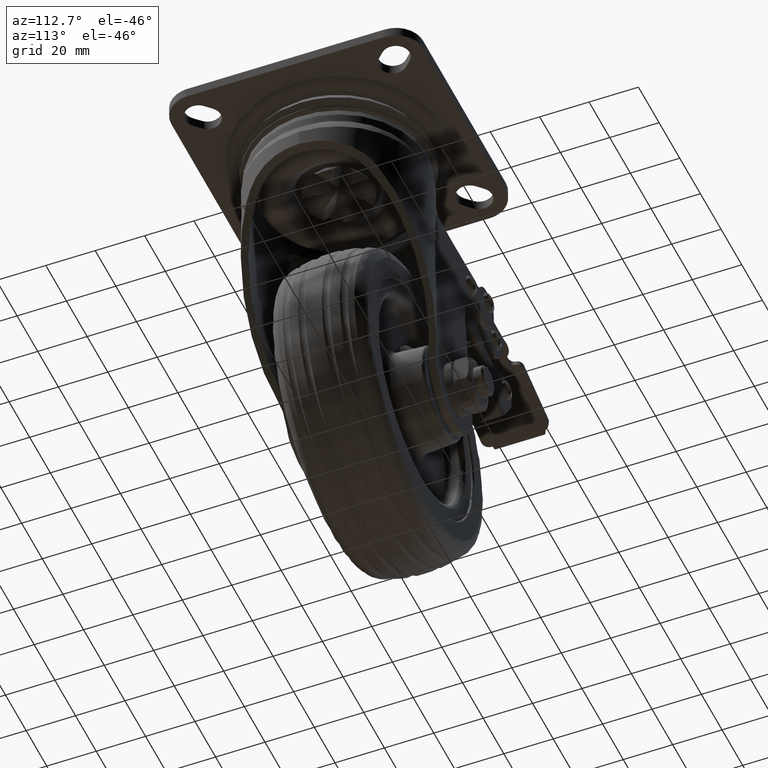
[diagram: clean part render]
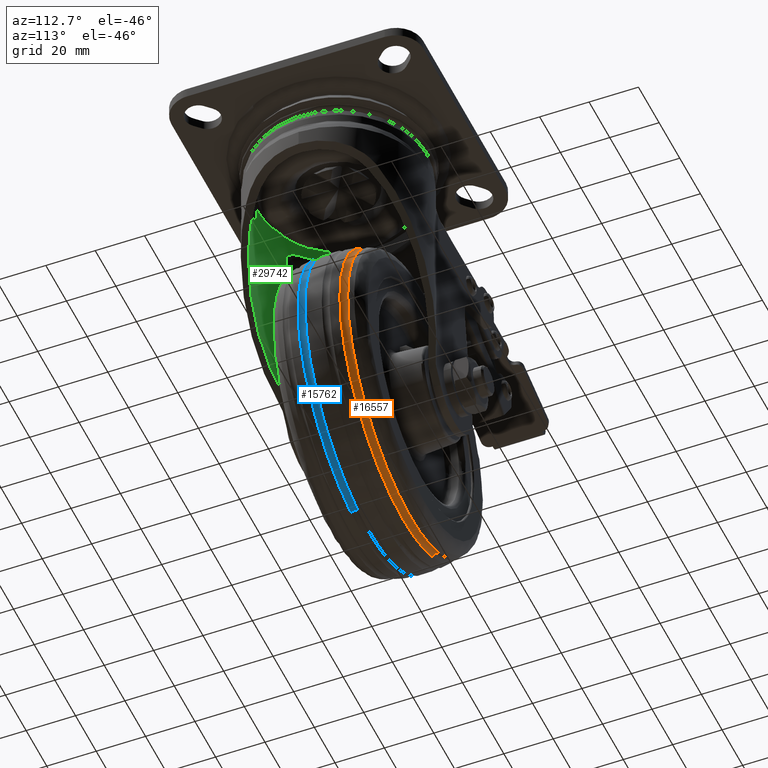
[diagram: same view with three faces highlighted in distinct colors, each labeled with its STEP entity id]
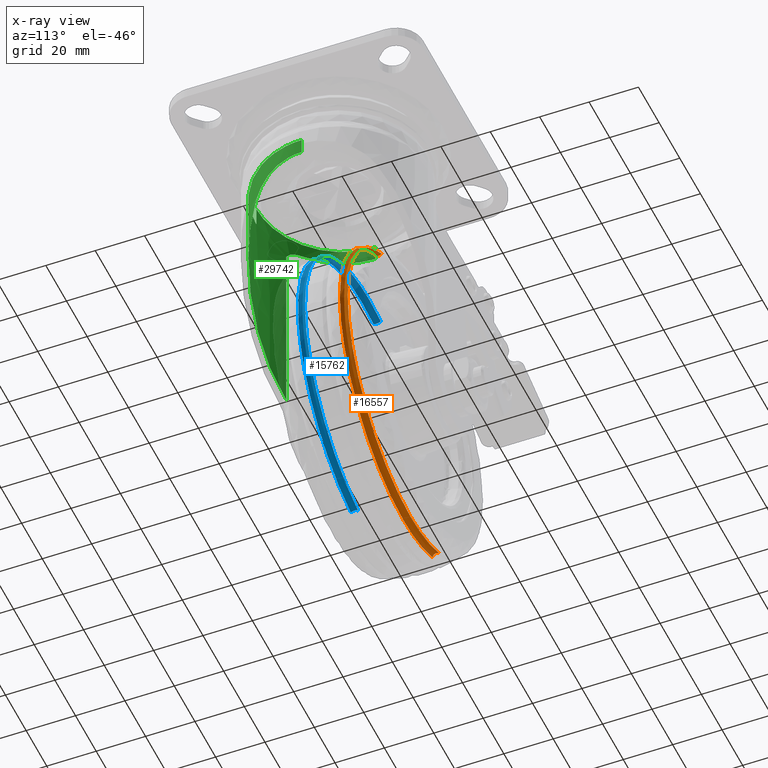
[diagram: x-ray of the same camera — body ghosted, the three highlighted faces saturated]
A machine part, auxiliary view with three faces highlighted in distinct colors.
The next image is the same camera in x-ray (body ghosted, the three faces saturated) — at least one of them is partly hidden behind the body in this view.
Their STEP definitions:

[orange] entity #16557 — the highlighted face is a freeform B-spline surface patch.
#16207=CARTESIAN_POINT('',(-66.229062345507842,10.319396412320030,-160.052411593649110));
#16208=VERTEX_POINT('',#16207);
#16235=CARTESIAN_POINT('',(-38.000026702880859,10.319405059351331,-166.923472942941800));
#16236=VERTEX_POINT('',#16235);
#16237=CARTESIAN_POINT('',(-66.229062345507842,10.319396412320026,-160.052411593649080));
#16238=CARTESIAN_POINT('',(-52.950765855068440,10.319400735838927,-166.923471316384820));
#16239=CARTESIAN_POINT('',(-38.000026702880859,10.319405059351331,-166.923472942941800));
#16247=(BOUNDED_CURVE()B_SPLINE_CURVE(2,(#16237,#16238,#16239),.UNSPECIFIED.,.F.,.U.)B_SPLINE_CURVE_WITH_KNOTS((3,3),(0.921825375654569,1.0),.UNSPECIFIED.)CURVE()GEOMETRIC_REPRESENTATION_ITEM()RATIONAL_B_SPLINE_CURVE((0.874103864218995,0.908412730583737,1.0))REPRESENTATION_ITEM(''));
#16248=EDGE_CURVE('',#16208,#16236,#16247,.T.);
#16301=CARTESIAN_POINT('',(-9.770991060236376,10.319396412257509,-50.947389300848378));
#16302=VERTEX_POINT('',#16301);
#16303=CARTESIAN_POINT('',(-38.000026702880859,10.319405059351331,-166.923472942941800));
#16304=CARTESIAN_POINT('',(-35.230134175752880,10.319405011904029,-166.923595113737090));
#16305=CARTESIAN_POINT('',(-30.116525492604818,10.319404899894430,-166.576958346746810));
#16306=CARTESIAN_POINT('',(-22.470657650089191,10.319404663995460,-165.086611877636300));
#16307=CARTESIAN_POINT('',(-15.872305840215031,10.319404399703959,-162.937932803981910));
#16308=CARTESIAN_POINT('',(-9.173076871348695,10.319404070566300,-159.892554954199510));
#16309=CARTESIAN_POINT('',(-2.217305575817861,10.319403657161191,-155.712453854312290));
#16310=CARTESIAN_POINT('',(5.355456995780735,10.319403085677870,-149.436750448974210));
#16311=CARTESIAN_POINT('',(11.191352498547490,10.319402504907631,-142.606358660684800));
#16312=CARTESIAN_POINT('',(15.115384223598801,10.319402008374920,-136.507356923572390));
#16313=CARTESIAN_POINT('',(18.386053018698782,10.319401513730730,-130.276155463411100));
#16314=CARTESIAN_POINT('',(21.011213171668150,10.319400975488101,-123.268448787737200));
#16315=CARTESIAN_POINT('',(23.041689481357739,10.319400295351681,-114.100141240293500));
#16316=CARTESIAN_POINT('',(23.651689097656352,10.319399691732229,-105.673147479018890));
#16317=CARTESIAN_POINT('',(22.978549460782130,10.319399081547930,-96.840578680787374));
#16318=CARTESIAN_POINT('',(21.230693850553930,10.319398515255219,-88.369967143670351));
#16319=CARTESIAN_POINT('',(18.114275346492530,10.319397975842760,-79.948134405594345));
#16320=CARTESIAN_POINT('',(14.185758700070860,10.319397543322969,-72.847238859730396));
#16321=CARTESIAN_POINT('',(10.097083900023220,10.319397210060909,-67.117478870026787));
#16322=CARTESIAN_POINT('',(5.150317566958044,10.319396900853331,-61.520602363956300));
#16323=CARTESIAN_POINT('',(-1.485252376791422,10.319396611721290,-55.797872487656882));
#16324=CARTESIAN_POINT('',(-6.932402543154620,10.319396467004070,-52.416076676492843));
#16325=CARTESIAN_POINT('',(-9.770991060236376,10.319396412257509,-50.947389300848378));
#16326=B_SPLINE_CURVE_WITH_KNOTS('',3,(#16303,#16304,#16305,#16306,#16307,#16308,#16309,#16310,#16311,#16312,#16313,#16314,#16315,#16316,#16317,#16318,#16319,#16320,#16321,#16322,#16323,#16324,#16325),.UNSPECIFIED.,.F.,.U.,(4,1,1,1,1,1,1,1,1,1,1,1,1,1,1,1,1,1,1,1,4),(0.000000010280189,8.309664418567081,15.340960222253470,23.331032574775261,29.083906240755852,37.393573825419907,47.620928486874867,58.487473980401433,64.240316624039195,69.353973929424811,79.581387522743796,86.612680220219687,97.479004289840830,104.829881301838200,113.139571026397700,123.366886355971200,131.676596791578190,137.429452753070110,144.460730991710110,154.048829012204490,163.636920496424490),.UNSPECIFIED.);
#16327=EDGE_CURVE('',#16236,#16302,#16326,.T.);
#16388=CARTESIAN_POINT('',(-10.091450953206961,13.199706283594841,-51.566676906595163));
#16389=VERTEX_POINT('',#16388);
#16405=CARTESIAN_POINT('',(-65.908602417812745,13.199702148256550,-159.433123920797900));
#16406=VERTEX_POINT('',#16405);
#16435=CARTESIAN_POINT('',(-66.229062345507842,10.319396412320030,-160.052411593649110));
#16436=CARTESIAN_POINT('',(-66.143455183676792,10.390711486503930,-159.886976057360410));
#16437=CARTESIAN_POINT('',(-65.997918780352961,10.577542873255480,-159.605727474657300));
#16438=CARTESIAN_POINT('',(-65.851096961308684,10.930161642578479,-159.321994830614390));
#16439=CARTESIAN_POINT('',(-65.753165191699324,11.311654662174121,-159.132742033509290));
#16440=CARTESIAN_POINT('',(-65.701528102262159,11.698203832180271,-159.032953541460500));
#16441=CARTESIAN_POINT('',(-65.692922614072714,12.153642032127779,-159.016323466023290));
#16442=CARTESIAN_POINT('',(-65.741513714361275,12.673712024112310,-159.110225594725990));
#16443=CARTESIAN_POINT('',(-65.836299806807688,13.024122759924520,-159.293399381776600));
#16444=CARTESIAN_POINT('',(-65.908602417812745,13.199702148256550,-159.433123920797900));
#16445=B_SPLINE_CURVE_WITH_KNOTS('',3,(#16435,#16436,#16437,#16438,#16439,#16440,#16441,#16442,#16443,#16444),.UNSPECIFIED.,.F.,.U.,(4,1,1,1,1,1,1,4),(0.000000659704927,0.598358886815011,1.087993877044493,1.414407411617876,1.903866145151539,2.284668345177217,2.774239790144032,3.481402093347331),.UNSPECIFIED.);
#16446=EDGE_CURVE('',#16208,#16406,#16445,.T.);
#16450=CARTESIAN_POINT('',(-9.770991060236376,10.319396412257509,-50.947389300848378));
#16451=CARTESIAN_POINT('',(-9.903448905021246,10.429155047218289,-51.203363615601063));
#16452=CARTESIAN_POINT('',(-10.098828692112001,10.736232475375850,-51.580934360475453));
#16453=CARTESIAN_POINT('',(-10.255333604528040,11.325064366479740,-51.883379548112551));
#16454=CARTESIAN_POINT('',(-10.305389462249410,11.806968418589539,-51.980112315498822));
#16455=CARTESIAN_POINT('',(-10.301055929917780,12.299214558932700,-51.971737779726318));
#16456=CARTESIAN_POINT('',(-10.235544477715241,12.774647874624140,-51.845137131021531));
#16457=CARTESIAN_POINT('',(-10.141442839762281,13.078076985320390,-51.663286049842483));
#16458=CARTESIAN_POINT('',(-10.091450953206961,13.199706283594841,-51.566676906595163));
#16459=B_SPLINE_CURVE_WITH_KNOTS('',3,(#16450,#16451,#16452,#16453,#16454,#16455,#16456,#16457,#16458),.UNSPECIFIED.,.F.,.U.,(4,1,1,1,1,1,4),(0.000000658850217,0.924784091917862,1.523121223393835,2.012594657145914,2.393417123237470,2.991844392173514,3.481407163388247),.UNSPECIFIED.);
#16460=EDGE_CURVE('',#16302,#16389,#16459,.T.);
#16465=CARTESIAN_POINT('',(-67.832413510722134,10.266041945998506,-159.404594822694800));
#16466=CARTESIAN_POINT('',(-67.072305796272829,10.266041945998508,-159.797924246265410));
#16467=CARTESIAN_POINT('',(-11.607331502610361,10.266041945998508,-188.499127973810350));
#16468=CARTESIAN_POINT('',(16.695934660526714,10.266041945998506,-133.803166610402710));
#16469=CARTESIAN_POINT('',(44.999200823663820,10.266041945998508,-79.107205246995150));
#16470=CARTESIAN_POINT('',(-10.465773470026173,10.266041945998508,-50.406001519436025));
#16471=CARTESIAN_POINT('',(-11.225881184502370,10.266041945998508,-50.012672095851450));
#16472=CARTESIAN_POINT('',(-67.336546905845154,10.551245192307114,-158.508604235047610));
#16473=CARTESIAN_POINT('',(-66.589073515096885,10.551245192307116,-158.895395833565200));
#16474=CARTESIAN_POINT('',(-12.046024398583111,10.551245192307116,-187.119535203506640));
#16475=CARTESIAN_POINT('',(15.786791827388519,10.551245192307116,-133.332716673237230));
#16476=CARTESIAN_POINT('',(43.619608053360153,10.551245192307116,-79.545898142967914));
#16477=CARTESIAN_POINT('',(-10.923441063180668,10.551245192307114,-51.321758773012448));
#16478=CARTESIAN_POINT('',(-11.670914453955380,10.551245192307114,-50.934967174481137));
#16479=CARTESIAN_POINT('',(-67.217953286711335,11.585299031982135,-158.294315219707870));
#16480=CARTESIAN_POINT('',(-66.473501575903370,11.585299031982139,-158.679543203481870));
#16481=CARTESIAN_POINT('',(-12.150944104225715,11.585299031982139,-186.789585781722760));
#16482=CARTESIAN_POINT('',(15.569357263675260,11.585299031982141,-133.220201815166600));
#16483=CARTESIAN_POINT('',(43.289658631576238,11.585299031982139,-79.650817848610501));
#16484=CARTESIAN_POINT('',(-11.032898840128372,11.585299031982133,-51.540775270355660));
#16485=CARTESIAN_POINT('',(-11.777350550962705,11.585299031982139,-51.155547286568179));
#16486=CARTESIAN_POINT('',(-67.100693491145435,12.607722858239367,-158.082436314971910));
#16487=CARTESIAN_POINT('',(-66.359229475414551,12.607722858239367,-158.466118269992080));
#16488=CARTESIAN_POINT('',(-12.254683776936190,12.607722858239368,-186.463347304239080));
#16489=CARTESIAN_POINT('',(15.354368188578201,12.607722858239368,-133.108952412780070));
#16490=CARTESIAN_POINT('',(42.963420154092610,12.607722858239368,-79.754557521320976));
#16491=CARTESIAN_POINT('',(-11.141125544412619,12.607722858239363,-51.757328487060093));
#16492=CARTESIAN_POINT('',(-11.882589560169716,12.607722858239372,-51.373646532026356));
#16493=CARTESIAN_POINT('',(-67.474289593062593,13.321259894450646,-158.757494057532600));
#16494=CARTESIAN_POINT('',(-66.723306617920770,13.321259894450643,-159.146101744454820));
#16495=CARTESIAN_POINT('',(-11.924163523581308,13.321259894450639,-187.502760880691600));
#16496=CARTESIAN_POINT('',(16.039335103481903,13.321259894450638,-133.463399074328810));
#16497=CARTESIAN_POINT('',(44.002833730545085,13.321259894450639,-79.424037267966085));
#16498=CARTESIAN_POINT('',(-10.796309363821564,13.321259894450639,-51.067378131715230));
#16499=CARTESIAN_POINT('',(-11.547292338989948,13.321259894450638,-50.678770444779211));
#16507=(BOUNDED_SURFACE()B_SPLINE_SURFACE(2,2,((#16465,#16472,#16479,#16486,#16493),(#16466,#16473,#16480,#16487,#16494),(#16467,#16474,#16481,#16488,#16495),(#16468,#16475,#16482,#16489,#16496),(#16469,#16476,#16483,#16490,#16497),(#16470,#16477,#16484,#16491,#16498),(#16471,#16478,#16485,#16492,#16499)),.UNSPECIFIED.,.F.,.F.,.U.)B_SPLINE_SURFACE_WITH_KNOTS((3,1,2,1,3),(3,2,3),(0.0,2.040750295518150,104.078265067145690,206.115779838773190,208.156530134364800),(0.0,1.966906784546584,3.915065884135067),.UNSPECIFIED.)GEOMETRIC_REPRESENTATION_ITEM()RATIONAL_B_SPLINE_SURFACE(((0.976481071352667,0.855918617845956,1.011715728753030,0.857403606954548,0.974207882884516),(0.970827216697992,0.850962823408663,1.005857864376515,0.852439214385833,0.968567190059168),(0.682480629321449,0.598217307117140,0.707106781186548,0.599255193391744,0.680891855978244),(0.965173362043318,0.846007028971371,1.0,0.847474821817117,0.962926497233820),(0.682480629321449,0.598217307117140,0.707106781186548,0.599255193391744,0.680891855978244),(0.970827216698196,0.850962823408842,1.005857864376726,0.852439214386011,0.968567190059371),(0.976481071353074,0.855918617846313,1.011715728753451,0.857403606954906,0.974207882884922)))REPRESENTATION_ITEM('')SURFACE());
#16508=CARTESIAN_POINT('',(-38.000026702880859,13.199703744225380,-166.226178585033300));
#16509=VERTEX_POINT('',#16508);
#16510=CARTESIAN_POINT('',(-38.000026702880859,13.199703744225380,-166.226178585033300));
#16511=CARTESIAN_POINT('',(-33.997622610262312,13.199703713977790,-166.226766466874810));
#16512=CARTESIAN_POINT('',(-28.520988371595902,13.199703685657679,-165.682711039748510));
#16513=CARTESIAN_POINT('',(-21.139639697045510,13.199703672133410,-163.921941811621710));
#16514=CARTESIAN_POINT('',(-15.338043511751231,13.199703674823059,-161.982701950903500));
#16515=CARTESIAN_POINT('',(-9.123369059252134,13.199703697522750,-159.079120170320410));
#16516=CARTESIAN_POINT('',(-3.472514012202467,13.199703738714870,-155.582134093874710));
#16517=CARTESIAN_POINT('',(2.294665931494592,13.199703801533220,-151.146868380440110));
#16518=CARTESIAN_POINT('',(7.549442116570084,13.199703886649321,-145.943358042423710));
#16519=CARTESIAN_POINT('',(12.497922853152151,13.199704003789011,-139.501189653669800));
#16520=CARTESIAN_POINT('',(15.928837311748740,13.199704117443680,-133.682254851653600));
#16521=CARTESIAN_POINT('',(18.614856732423242,13.199704240089210,-127.723052200579000));
#16522=CARTESIAN_POINT('',(20.445347493278849,13.199704355618501,-122.329986044610910));
#16523=CARTESIAN_POINT('',(21.941663513146811,13.199704496936651,-115.966996548598600));
#16524=CARTESIAN_POINT('',(22.761633575346199,13.199704651567350,-109.261938326591900));
#16525=CARTESIAN_POINT('',(22.757070473811488,13.199704838854220,-101.455124071693110));
#16526=CARTESIAN_POINT('',(21.826571618195569,13.199705019193740,-94.229503040700948));
#16527=CARTESIAN_POINT('',(20.023617666554589,13.199705201923059,-87.179111561065056));
#16528=CARTESIAN_POINT('',(17.313628420588930,13.199705395299709,-79.970316718948567));
#16529=CARTESIAN_POINT('',(13.682782835386380,13.199705583090349,-73.284553803854564));
#16530=CARTESIAN_POINT('',(8.852840224047071,13.199705779272110,-66.626516673704614));
#16531=CARTESIAN_POINT('',(4.318554826972317,13.199705930300890,-61.757884774131142));
#16532=CARTESIAN_POINT('',(-2.096389878329667,13.199706110066980,-56.283425503904397));
#16533=CARTESIAN_POINT('',(-6.723654864734925,13.199706216367350,-53.308870413721067));
#16534=CARTESIAN_POINT('',(-10.091450953206961,13.199706283594841,-51.566676906595163));
#16535=B_SPLINE_CURVE_WITH_KNOTS('',3,(#16510,#16511,#16512,#16513,#16514,#16515,#16516,#16517,#16518,#16519,#16520,#16521,#16522,#16523,#16524,#16525,#16526,#16527,#16528,#16529,#16530,#16531,#16532,#16533,#16534),.UNSPECIFIED.,.F.,.U.,(4,1,1,1,1,1,1,1,1,1,1,1,1,1,1,1,1,1,1,1,1,1,4),(0.000000011087280,12.007049606461980,16.430598285471770,22.750219948311269,30.333615748732878,36.969101349803708,42.656667181370807,52.135937677313812,59.087411920567021,66.986815813661153,72.358439960222853,78.677957385104733,84.049481165100900,91.948948385413246,98.900221062579945,107.431567419763000,113.751043356963610,120.702508141534690,130.497738627010990,136.501270661268710,145.348583621094600,150.404193522153610,161.779278836179000),.UNSPECIFIED.);
#16536=EDGE_CURVE('',#16509,#16389,#16535,.T.);
#16537=ORIENTED_EDGE('',*,*,#16536,.T.);
#16538=ORIENTED_EDGE('',*,*,#16460,.F.);
#16539=ORIENTED_EDGE('',*,*,#16327,.F.);
#16540=ORIENTED_EDGE('',*,*,#16248,.F.);
#16541=ORIENTED_EDGE('',*,*,#16446,.T.);
#16542=CARTESIAN_POINT('',(-65.908602417812730,13.199702148256550,-159.433123920797950));
#16543=CARTESIAN_POINT('',(-52.781042970336586,13.199702759364468,-166.226179561653000));
#16544=CARTESIAN_POINT('',(-38.000026702880859,13.199703744225380,-166.226178585033300));
#16552=(BOUNDED_CURVE()B_SPLINE_CURVE(2,(#16542,#16543,#16544),.UNSPECIFIED.,.F.,.U.)B_SPLINE_CURVE_WITH_KNOTS((3,3),(0.921825373125718,1.0),.UNSPECIFIED.)CURVE()GEOMETRIC_REPRESENTATION_ITEM()RATIONAL_B_SPLINE_CURVE((0.874103861999298,0.908412727621004,1.0))REPRESENTATION_ITEM(''));
#16553=EDGE_CURVE('',#16406,#16509,#16552,.T.);
#16554=ORIENTED_EDGE('',*,*,#16553,.T.);
#16555=EDGE_LOOP('',(#16537,#16538,#16539,#16540,#16541,#16554));
#16556=FACE_OUTER_BOUND('',#16555,.T.);
#16557=ADVANCED_FACE('',(#16556),#16507,.F.);

[blue] entity #15762 — the highlighted face is a freeform B-spline surface patch.
#15391=CARTESIAN_POINT('',(-38.000026702880859,-6.374438212833455,-43.407837706515437));
#15392=VERTEX_POINT('',#15391);
#15406=CARTESIAN_POINT('',(-48.867570147127523,-6.374433639581213,-44.366266160752218));
#15407=VERTEX_POINT('',#15406);
#15408=CARTESIAN_POINT('',(-38.000026702880859,-6.374438212833455,-43.407837706515437));
#15409=CARTESIAN_POINT('',(-43.476061541019433,-6.374435927984968,-43.407835804550913));
#15410=CARTESIAN_POINT('',(-48.867570147127530,-6.374433639581213,-44.366266160752218));
#15418=(BOUNDED_CURVE()B_SPLINE_CURVE(2,(#15408,#15409,#15410),.UNSPECIFIED.,.F.,.U.)B_SPLINE_CURVE_WITH_KNOTS((3,3),(0.500000000000000,0.530081745990662),.UNSPECIFIED.)CURVE()GEOMETRIC_REPRESENTATION_ITEM()RATIONAL_B_SPLINE_CURVE((1.0,0.964757042357065,0.937995442312326))REPRESENTATION_ITEM(''));
#15419=EDGE_CURVE('',#15392,#15407,#15418,.T.);
#15503=CARTESIAN_POINT('',(-27.132483248563730,-6.374433370999287,-166.633534790428800));
#15504=VERTEX_POINT('',#15503);
#15518=CARTESIAN_POINT('',(-27.132483248563730,-6.374433370999287,-166.633534790428800));
#15519=CARTESIAN_POINT('',(-24.417720769879839,-6.374433381374597,-166.150963678353210));
#15520=CARTESIAN_POINT('',(-18.119325422119431,-6.374433422554100,-164.592899698546010));
#15521=CARTESIAN_POINT('',(-10.355124537810781,-6.374433526075030,-161.320084414505400));
#15522=CARTESIAN_POINT('',(-3.851076181880046,-6.374433656259266,-157.464475620997290));
#15523=CARTESIAN_POINT('',(1.977243881500627,-6.374433803112057,-153.235591374256100));
#15524=CARTESIAN_POINT('',(7.407369218649386,-6.374433985636255,-148.124250228534890));
#15525=CARTESIAN_POINT('',(12.025556613359701,-6.374434193000729,-142.441073034471490));
#15526=CARTESIAN_POINT('',(15.813170763082899,-6.374434403433246,-136.745539639413210));
#15527=CARTESIAN_POINT('',(18.664934201168862,-6.374434611510605,-131.185067997589900));
#15528=CARTESIAN_POINT('',(21.202942216629602,-6.374434861423167,-124.577416143338790));
#15529=CARTESIAN_POINT('',(22.904247559488589,-6.374435100372837,-118.317520409194000));
#15530=CARTESIAN_POINT('',(24.079585328134630,-6.374435407222512,-110.359363608954300));
#15531=CARTESIAN_POINT('',(24.197127198533721,-6.374435688270571,-103.146907450073100));
#15532=CARTESIAN_POINT('',(23.387205463061179,-6.374435998188844,-95.268544940719210));
#15533=CARTESIAN_POINT('',(21.903446751927650,-6.374436263790094,-88.579774744207441));
#15534=CARTESIAN_POINT('',(19.342067347230511,-6.374436554350766,-81.337316455164768));
#15535=CARTESIAN_POINT('',(16.030605250062511,-6.374436830187896,-74.532073257219110));
#15536=CARTESIAN_POINT('',(11.111820654587831,-6.374437134581906,-67.123198586964733));
#15537=CARTESIAN_POINT('',(4.485489732167288,-6.374437440262794,-59.817655178166547));
#15538=CARTESIAN_POINT('',(-2.894469615037259,-6.374437689549761,-54.017556151587819));
#15539=CARTESIAN_POINT('',(-10.184118771606011,-6.374437875584853,-49.831375101192492));
#15540=CARTESIAN_POINT('',(-16.253393494105730,-6.374437996132813,-47.226184168955328));
#15541=CARTESIAN_POINT('',(-22.550540381741492,-6.374438092849252,-45.249966410840102));
#15542=CARTESIAN_POINT('',(-29.608140325695320,-6.374438171431518,-43.799205169784237));
#15543=CARTESIAN_POINT('',(-35.002922546286442,-6.374438203506523,-43.407688843635157));
#15544=CARTESIAN_POINT('',(-38.000026702880859,-6.374438212833455,-43.407837706515437));
#15545=B_SPLINE_CURVE_WITH_KNOTS('',3,(#15518,#15519,#15520,#15521,#15522,#15523,#15524,#15525,#15526,#15527,#15528,#15529,#15530,#15531,#15532,#15533,#15534,#15535,#15536,#15537,#15538,#15539,#15540,#15541,#15542,#15543,#15544),.UNSPECIFIED.,.F.,.U.,(4,1,1,1,1,1,1,1,1,1,1,1,1,1,1,1,1,1,1,1,1,1,1,1,4),(0.000000177685649,8.272004178763439,19.421472825188228,25.175993736130781,30.930510894623009,41.000913436736397,47.474775218982607,52.869605124445400,61.501449401319860,66.176988897255626,74.089477643012245,80.922956186161954,90.273867168453904,95.668638542160011,104.660097637995090,110.774292200761390,118.686834370172090,127.318607125609700,137.389009915364990,148.178768020393110,155.371900698357310,162.565096377065490,167.959955983415910,175.153114431641910,184.144425123350600),.UNSPECIFIED.);
#15546=EDGE_CURVE('',#15504,#15392,#15545,.T.);
#15594=CARTESIAN_POINT('',(-48.918420716604587,-3.425195282217547,-44.080214383769729));
#15595=VERTEX_POINT('',#15594);
#15626=CARTESIAN_POINT('',(-27.081632549147201,-3.425193427250361,-166.919587298365200));
#15627=VERTEX_POINT('',#15626);
#15641=CARTESIAN_POINT('',(-27.132483248563730,-6.374433370999287,-166.633534790428800));
#15642=CARTESIAN_POINT('',(-27.173761659289521,-6.175852921627000,-166.401329667124290));
#15643=CARTESIAN_POINT('',(-27.232024249120769,-5.699761421656819,-166.073582750057200));
#15644=CARTESIAN_POINT('',(-27.251007975617849,-4.947470262560027,-165.966792820941290));
#15645=CARTESIAN_POINT('',(-27.227259965605629,-4.338806643107456,-166.100383467782000));
#15646=CARTESIAN_POINT('',(-27.174515647740449,-3.813982151511712,-166.397088224921590));
#15647=CARTESIAN_POINT('',(-27.117751353392539,-3.539170792969351,-166.716406719354210));
#15648=CARTESIAN_POINT('',(-27.081632549147201,-3.425193427250361,-166.919587298365200));
#15649=B_SPLINE_CURVE_WITH_KNOTS('',3,(#15641,#15642,#15643,#15644,#15645,#15646,#15647,#15648),.UNSPECIFIED.,.F.,.U.,(4,1,1,1,1,4),(0.000000691923259,0.924783980439441,1.686412286160685,2.230205543401768,2.774245635520661,3.481410491852085),.UNSPECIFIED.);
#15650=EDGE_CURVE('',#15504,#15627,#15649,.T.);
#15654=CARTESIAN_POINT('',(-48.867570147127523,-6.374433639581213,-44.366266160752218));
#15655=CARTESIAN_POINT('',(-48.836031296389237,-6.222406138482135,-44.543682940996348));
#15656=CARTESIAN_POINT('',(-48.797816056085352,-5.947430393428119,-44.758656687110133));
#15657=CARTESIAN_POINT('',(-48.760668149404708,-5.424359941825179,-44.967626317998899));
#15658=CARTESIAN_POINT('',(-48.751555556203222,-4.966647357113128,-45.018887759340672));
#15659=CARTESIAN_POINT('',(-48.769197527696022,-4.391822330050552,-44.919645659405070));
#15660=CARTESIAN_POINT('',(-48.818114481676353,-3.849810298051311,-44.644471128046732));
#15661=CARTESIAN_POINT('',(-48.882301888194192,-3.539155461745883,-44.283395098717428));
#15662=CARTESIAN_POINT('',(-48.918420716604587,-3.425195282217547,-44.080214383769729));
#15663=B_SPLINE_CURVE_WITH_KNOTS('',3,(#15654,#15655,#15656,#15657,#15658,#15659,#15660,#15661,#15662),.UNSPECIFIED.,.F.,.U.,(4,1,1,1,1,1,4),(0.000000692301464,0.707164400526173,1.033557493683062,1.686411228709342,2.067001008403227,2.774243897279070,3.481408310579208),.UNSPECIFIED.);
#15664=EDGE_CURVE('',#15407,#15595,#15663,.T.);
#15669=CARTESIAN_POINT('',(-28.821638908060727,-6.478191227089352,-167.071127880040680));
#15670=CARTESIAN_POINT('',(-27.970217263238034,-6.478191227089353,-166.919773199063090));
#15671=CARTESIAN_POINT('',(34.157924247061224,-6.478191227089352,-155.875439178187660));
#15672=CARTESIAN_POINT('',(23.266718137551205,-6.478191227089352,-94.608694337755637));
#15673=CARTESIAN_POINT('',(12.375512028041200,-6.478191227089352,-33.341949497323597));
#15674=CARTESIAN_POINT('',(-49.752629482338691,-6.478191227089352,-44.386283518213268));
#15675=CARTESIAN_POINT('',(-50.604051127240155,-6.478191227089353,-44.537638199204906));
#15676=CARTESIAN_POINT('',(-28.949062833476180,-5.877915552168859,-166.216332063224260));
#15677=CARTESIAN_POINT('',(-28.109461509454086,-5.877915552168860,-166.067078645345420));
#15678=CARTESIAN_POINT('',(33.156152523582030,-5.877915552168860,-155.176073556086290));
#15679=CARTESIAN_POINT('',(22.416149464760913,-5.877915552168860,-94.759897388444543));
#15680=CARTESIAN_POINT('',(11.676146405939804,-5.877915552168860,-34.343721220802777));
#15681=CARTESIAN_POINT('',(-49.589467627175821,-5.877915552168860,-45.234726310075999));
#15682=CARTESIAN_POINT('',(-50.429068951275610,-5.877915552168860,-45.383979727968587));
#15683=CARTESIAN_POINT('',(-28.934460547344656,-4.830605036026676,-166.314288338393960));
#15684=CARTESIAN_POINT('',(-28.093504660543729,-4.830605036026672,-166.164794123938520));
#15685=CARTESIAN_POINT('',(33.270951665870527,-4.830605036026674,-155.256218135616250));
#15686=CARTESIAN_POINT('',(22.513621325670179,-4.830605036026674,-94.742570107065291));
#15687=CARTESIAN_POINT('',(11.756290985469832,-4.830605036026674,-34.228922078514273));
#15688=CARTESIAN_POINT('',(-49.608165341024105,-4.830605036026674,-45.137498066850675));
#15689=CARTESIAN_POINT('',(-50.449121227902779,-4.830605036026671,-45.286992281319783));
#15690=CARTESIAN_POINT('',(-28.919728299006412,-3.773973322878276,-166.413116436890870));
#15691=CARTESIAN_POINT('',(-28.077405793645411,-3.773973322878276,-166.263379282738750));
#15692=CARTESIAN_POINT('',(33.386772535149213,-3.773973322878277,-155.337076012113440));
#15693=CARTESIAN_POINT('',(22.611960698558075,-3.773973322878277,-94.725088610674533));
#15694=CARTESIAN_POINT('',(11.837148861966959,-3.773973322878277,-34.113101209235623));
#15695=CARTESIAN_POINT('',(-49.627029466907430,-3.773973322878276,-45.039404479875103));
#15696=CARTESIAN_POINT('',(-50.469351972346360,-3.773973322878276,-45.189141634041000));
#15697=CARTESIAN_POINT('',(-28.776220906763609,-3.349917203351470,-167.375804708904470));
#15698=CARTESIAN_POINT('',(-27.920586117951636,-3.349917203351471,-167.223701069912490));
#15699=CARTESIAN_POINT('',(34.514988034635309,-3.349917203351470,-156.124715667106130));
#15700=CARTESIAN_POINT('',(23.569888275797464,-3.349917203351471,-94.554800688427804));
#15701=CARTESIAN_POINT('',(12.624788516959619,-3.349917203351470,-32.984885709749491));
#15702=CARTESIAN_POINT('',(-49.810785635708370,-3.349917203351470,-44.083871112570293));
#15703=CARTESIAN_POINT('',(-50.666420424599508,-3.349917203351470,-44.235974751576265));
#15711=(BOUNDED_SURFACE()B_SPLINE_SURFACE(2,2,((#15669,#15676,#15683,#15690,#15697),(#15670,#15677,#15684,#15691,#15698),(#15671,#15678,#15685,#15692,#15699),(#15672,#15679,#15686,#15693,#15700),(#15673,#15680,#15687,#15694,#15701),(#15674,#15681,#15688,#15695,#15702),(#15675,#15682,#15689,#15696,#15703)),.UNSPECIFIED.,.F.,.F.,.U.)B_SPLINE_SURFACE_WITH_KNOTS((3,1,2,1,3),(3,2,3),(0.0,2.072233813328015,105.683924482671200,209.295615152014310,211.367848965537410),(0.0,1.950044168597617,3.914774095284426),.UNSPECIFIED.)GEOMETRIC_REPRESENTATION_ITEM()RATIONAL_B_SPLINE_SURFACE(((0.974451260011927,0.857243036025896,1.011715728752205,0.856079704121268,0.976232055923859),(0.968809158026113,0.852279573168013,1.005857864376103,0.851122976989960,0.970579643076370),(0.681061956741579,0.599142967408901,0.707106781186548,0.598329893286244,0.682306587846394),(0.963167056040299,0.847316110310129,1.0,0.846166249858653,0.964927230228880),(0.681061956741579,0.599142967408901,0.707106781186548,0.598329893286244,0.682306587846394),(0.968809158026644,0.852279573168480,1.005857864376654,0.851122976990427,0.970579643076902),(0.974451260012989,0.857243036026831,1.011715728753309,0.856079704122201,0.976232055924923)))REPRESENTATION_ITEM('')SURFACE());
#15712=CARTESIAN_POINT('',(-38.000026702880859,-3.425197493517917,-43.117296189173508));
#15713=VERTEX_POINT('',#15712);
#15714=CARTESIAN_POINT('',(-38.000026702880859,-3.425197493517917,-43.117296189173508));
#15715=CARTESIAN_POINT('',(-43.501684585320575,-3.425196399374619,-43.117296786608584));
#15716=CARTESIAN_POINT('',(-48.918420716604587,-3.425195282217548,-44.080214383769729));
#15724=(BOUNDED_CURVE()B_SPLINE_CURVE(2,(#15714,#15715,#15716),.UNSPECIFIED.,.F.,.U.)B_SPLINE_CURVE_WITH_KNOTS((3,3),(0.500000000000000,0.530081746601706),.UNSPECIFIED.)CURVE()GEOMETRIC_REPRESENTATION_ITEM()RATIONAL_B_SPLINE_CURVE((1.0,0.964757041641183,0.937995441225121))REPRESENTATION_ITEM(''));
#15725=EDGE_CURVE('',#15713,#15595,#15724,.T.);
#15726=ORIENTED_EDGE('',*,*,#15725,.T.);
#15727=ORIENTED_EDGE('',*,*,#15664,.F.);
#15728=ORIENTED_EDGE('',*,*,#15419,.F.);
#15729=ORIENTED_EDGE('',*,*,#15546,.F.);
#15730=ORIENTED_EDGE('',*,*,#15650,.T.);
#15731=CARTESIAN_POINT('',(-27.081632549147201,-3.425193427250361,-166.919587298365200));
#15732=CARTESIAN_POINT('',(-24.591293042725141,-3.425193439808628,-166.476954977804210));
#15733=CARTESIAN_POINT('',(-19.664565987291610,-3.425193474914912,-165.288188467575310));
#15734=CARTESIAN_POINT('',(-12.884430927728570,-3.425193552844244,-162.748613729746490));
#15735=CARTESIAN_POINT('',(-6.974195025110880,-3.425193646944857,-159.736423611430500));
#15736=CARTESIAN_POINT('',(-1.593364435963707,-3.425193755727920,-156.288911615968000));
#15737=CARTESIAN_POINT('',(4.358075870063594,-3.425193905969257,-151.562865672016500));
#15738=CARTESIAN_POINT('',(9.622119718970872,-3.425194082112358,-146.062969278099810));
#15739=CARTESIAN_POINT('',(14.922667655462140,-3.425194313216353,-138.885323700886600));
#15740=CARTESIAN_POINT('',(19.001219938054120,-3.425194553071171,-131.469878287914810));
#15741=CARTESIAN_POINT('',(22.158010162661171,-3.425194837208813,-122.725355366690390));
#15742=CARTESIAN_POINT('',(23.997895907818670,-3.425195118226616,-114.107479138975190));
#15743=CARTESIAN_POINT('',(24.617455917572158,-3.425195413967072,-105.069556282438400));
#15744=CARTESIAN_POINT('',(23.933222691929618,-3.425195686745169,-96.763348712435970));
#15745=CARTESIAN_POINT('',(22.200711378650691,-3.425195958889092,-88.501534661836828));
#15746=CARTESIAN_POINT('',(19.783830325372691,-3.425196188968550,-81.539461647276056));
#15747=CARTESIAN_POINT('',(16.024340684404869,-3.425196439636376,-73.981297011364148));
#15748=CARTESIAN_POINT('',(11.882121656866691,-3.425196647367345,-67.742289629324119));
#15749=CARTESIAN_POINT('',(6.020076268465850,-3.425196872605832,-61.010196176286406));
#15750=CARTESIAN_POINT('',(-0.001797814528928,-3.425197048814647,-55.777830187154770));
#15751=CARTESIAN_POINT('',(-6.260092070925143,-3.425197187864129,-51.684853065087452));
#15752=CARTESIAN_POINT('',(-12.237027136854531,-3.425197295446152,-48.545237307609113));
#15753=CARTESIAN_POINT('',(-19.654527760301640,-3.425197396563005,-45.637282619103537));
#15754=CARTESIAN_POINT('',(-28.605239534165889,-3.425197470990878,-43.580228404050487));
#15755=CARTESIAN_POINT('',(-34.988901458490830,-3.425197491164628,-43.117180724885472));
#15756=CARTESIAN_POINT('',(-38.000026702880859,-3.425197493517917,-43.117296189173508));
#15757=B_SPLINE_CURVE_WITH_KNOTS('',3,(#15731,#15732,#15733,#15734,#15735,#15736,#15737,#15738,#15739,#15740,#15741,#15742,#15743,#15744,#15745,#15746,#15747,#15748,#15749,#15750,#15751,#15752,#15753,#15754,#15755,#15756),.UNSPECIFIED.,.F.,.U.,(4,1,1,1,1,1,1,1,1,1,1,1,1,1,1,1,1,1,1,1,1,1,1,4),(0.000000180066650,7.588116720266754,15.176277027644890,21.680341300472492,27.461804002839699,34.327296941984542,44.444826899556922,50.226269179318479,61.066474729106901,69.738633977825344,78.049529286239661,87.444226494381454,96.839090594019410,102.981864608274190,112.737990273370200,118.880793223067600,128.275693387180210,135.141153752690090,145.620023431761810,152.124194825216390,157.544249594696590,165.855058074030610,175.972680413868400,185.006069209746190),.UNSPECIFIED.);
#15758=EDGE_CURVE('',#15627,#15713,#15757,.T.);
#15759=ORIENTED_EDGE('',*,*,#15758,.T.);
#15760=EDGE_LOOP('',(#15726,#15727,#15728,#15729,#15730,#15759));
#15761=FACE_OUTER_BOUND('',#15760,.T.);
#15762=ADVANCED_FACE('',(#15761),#15711,.F.);

[green] entity #29742 — the highlighted face is a freeform B-spline surface patch.
#27816=CARTESIAN_POINT('',(33.117897078574600,-12.342195749429139,-28.749992000000098));
#27817=VERTEX_POINT('',#27816);
#27833=CARTESIAN_POINT('',(35.650001000000131,-8.917644E-012,-28.749991999999921));
#27834=VERTEX_POINT('',#27833);
#27852=CARTESIAN_POINT('',(33.117897078574600,-12.342195749429139,-28.749992000000049));
#27853=CARTESIAN_POINT('',(33.326688459775930,-11.852077951536479,-28.749992000000049));
#27854=CARTESIAN_POINT('',(33.523117233764360,-11.357170076511860,-28.749991999999910));
#27855=CARTESIAN_POINT('',(33.799117528559130,-10.607584806538910,-28.749991999999921));
#27856=CARTESIAN_POINT('',(33.888079584742663,-10.356305056896421,-28.749991999999921));
#27857=CARTESIAN_POINT('',(34.059312827317413,-9.852648331466138,-28.749991999999921));
#27858=CARTESIAN_POINT('',(34.141598501121962,-9.600252792265044,-28.749991999999921));
#27859=CARTESIAN_POINT('',(34.536509704239599,-8.335462638793869,-28.749991999999931));
#27860=CARTESIAN_POINT('',(34.799695643801847,-7.314649707235249,-28.749991999999921));
#27861=CARTESIAN_POINT('',(35.222269859455693,-5.255349715564203,-28.749991999999921));
#27862=CARTESIAN_POINT('',(35.381656866197822,-4.216862439313523,-28.749991999999910));
#27863=CARTESIAN_POINT('',(35.595515751247341,-2.122023482111763,-28.749991999999910));
#27864=CARTESIAN_POINT('',(35.649999386946327,-1.065673803148441,-28.749991999999910));
#27865=CARTESIAN_POINT('',(35.650000999988187,-0.000031471689444,-28.749991999999910));
#27866=CARTESIAN_POINT('',(35.650001000000117,-0.000015735848193,-28.749991999999910));
#27867=CARTESIAN_POINT('',(35.650001000000167,-8.917629E-012,-28.749991999999910));
#27868=B_SPLINE_CURVE_WITH_KNOTS('',3,(#27852,#27853,#27854,#27855,#27856,#27857,#27858,#27859,#27860,#27861,#27862,#27863,#27864,#27865,#27866,#27867),.UNSPECIFIED.,.F.,.U.,(4,2,2,2,2,2,2,4),(0.0,0.062500000000000,0.093750000000000,0.125000000000000,0.250000000000000,0.375000000000000,0.500000000000000,0.500001845843949),.UNSPECIFIED.);
#27869=EDGE_CURVE('',#27817,#27834,#27868,.T.);
#27897=CARTESIAN_POINT('',(1.077311E-014,-33.344049231719353,-26.749992000000049));
#27898=VERTEX_POINT('',#27897);
#28067=CARTESIAN_POINT('',(7.834509E-014,-33.344049231719353,-26.749992000000049));
#28068=CARTESIAN_POINT('',(0.434218145006582,-33.344049231719353,-26.787690371025541));
#28069=CARTESIAN_POINT('',(0.868708813743745,-33.336622669203273,-26.825412621652958));
#28070=CARTESIAN_POINT('',(1.736656016897679,-33.306938749982422,-26.900670795929820));
#28071=CARTESIAN_POINT('',(2.170351853922239,-33.284682264800573,-26.938227625185728));
#28072=CARTESIAN_POINT('',(2.820484193176611,-33.240150935555477,-26.994383141101029));
#28073=CARTESIAN_POINT('',(3.037104663457739,-33.223447784790451,-27.013069774627510));
#28074=CARTESIAN_POINT('',(3.469253401300969,-33.186409040938102,-27.050289141337181));
#28075=CARTESIAN_POINT('',(4.116196615141610,-33.125378479789227,-27.105918377050479));
#28076=CARTESIAN_POINT('',(4.759329940426262,-33.048039951943942,-27.160900261086461));
#28077=CARTESIAN_POINT('',(6.040575535732121,-32.871824557285912,-27.269876436878661));
#28078=CARTESIAN_POINT('',(7.735527163484584,-32.579492027618137,-27.412542309704449));
#28079=CARTESIAN_POINT('',(9.404015249767870,-32.173181742932648,-27.548661285071208));
#28080=CARTESIAN_POINT('',(11.059196298317040,-31.709356135240618,-27.680897718792181));
#28081=CARTESIAN_POINT('',(11.880133906379481,-31.448688260795119,-27.745074800159760));
#28082=CARTESIAN_POINT('',(13.101333238181921,-31.013442164672011,-27.837990103040791));
#28083=CARTESIAN_POINT('',(13.506696669916080,-30.860978410157369,-27.868403661312350));
#28084=CARTESIAN_POINT('',(14.112141225888250,-30.620997394351090,-27.913133355939280));
#28085=CARTESIAN_POINT('',(14.313624588661080,-30.539079595023651,-27.927902236353230));
#28086=CARTESIAN_POINT('',(14.715267506476490,-30.371625979672860,-27.957101868885530));
#28087=CARTESIAN_POINT('',(14.915083870597480,-30.286235472239252,-27.971507792587431));
#28088=CARTESIAN_POINT('',(15.909164700342330,-29.851003745197421,-28.042560428567679));
#28089=CARTESIAN_POINT('',(17.467729510634179,-29.101714171206439,-28.149987696576961));
#28090=CARTESIAN_POINT('',(18.962941384139452,-28.247498125855589,-28.244585243584972));
#28091=CARTESIAN_POINT('',(20.426237128626600,-27.340416785316581,-28.332667808284128));
#28092=CARTESIAN_POINT('',(21.141928311446101,-26.860445692478631,-28.373451350666279));
#28093=CARTESIAN_POINT('',(22.540610836223841,-25.846352248012550,-28.448465817050579));
#28094=CARTESIAN_POINT('',(23.223605299953661,-25.312234960940550,-28.482696309130841));
#28095=CARTESIAN_POINT('',(24.056039937240470,-24.609320889601229,-28.521410925272018));
#28096=CARTESIAN_POINT('',(24.221436811414819,-24.466984284174011,-28.528948898862900));
#28097=CARTESIAN_POINT('',(24.548732237392599,-24.179935019544359,-28.543561445895829));
#28098=CARTESIAN_POINT('',(25.034941762055009,-23.745366601278679,-28.564809434897100));
#28099=CARTESIAN_POINT('',(25.507015345872041,-23.298870208046040,-28.584086458977279));
#28100=CARTESIAN_POINT('',(26.432411254613839,-22.390057593723551,-28.620127481992679));
#28101=CARTESIAN_POINT('',(27.024366623915100,-21.763111580813820,-28.640802112970260));
#28102=CARTESIAN_POINT('',(28.158199845082269,-20.466987570482111,-28.676101600861681));
#28103=CARTESIAN_POINT('',(28.700079238189339,-19.797810852729882,-28.690725851636440));
#28104=CARTESIAN_POINT('',(29.732768991438551,-18.416410729203861,-28.714650910965869));
#28105=CARTESIAN_POINT('',(30.223583653735759,-17.704190922954979,-28.723951111502949));
#28106=CARTESIAN_POINT('',(30.803971298809401,-16.786006082647901,-28.732759539521350));
#28107=CARTESIAN_POINT('',(30.918389761162871,-16.600971488691400,-28.734380629155321));
#28108=CARTESIAN_POINT('',(31.143867553050750,-16.228072948521248,-28.737355408476720));
#28109=CARTESIAN_POINT('',(31.255011578754310,-16.040060231807679,-28.738709994410929));
#28110=CARTESIAN_POINT('',(31.582582805374969,-15.473038828382970,-28.742385855993120));
#28111=CARTESIAN_POINT('',(31.793150177677120,-15.091085772728260,-28.744320164772329));
#28112=CARTESIAN_POINT('',(32.401361957460850,-13.933385709419870,-28.748789835200451));
#28113=CARTESIAN_POINT('',(32.775552752763787,-13.145816311360599,-28.749992000000049));
#28114=CARTESIAN_POINT('',(33.117897078574600,-12.342195749429139,-28.749992000000049));
#28115=B_SPLINE_CURVE_WITH_KNOTS('',3,(#28067,#28068,#28069,#28070,#28071,#28072,#28073,#28074,#28075,#28076,#28077,#28078,#28079,#28080,#28081,#28082,#28083,#28084,#28085,#28086,#28087,#28088,#28089,#28090,#28091,#28092,#28093,#28094,#28095,#28096,#28097,#28098,#28099,#28100,#28101,#28102,#28103,#28104,#28105,#28106,#28107,#28108,#28109,#28110,#28111,#28112,#28113,#28114),.UNSPECIFIED.,.F.,.U.,(4,2,2,2,1,2,1,2,2,2,2,2,1,2,2,2,2,1,2,2,2,2,2,2,2,4),(0.0,0.031250000000000,0.062500000000000,0.078125000000000,0.093750000000000,0.125000000000000,0.187500000000000,0.250000000000000,0.312500000000000,0.343750000000000,0.359375000000000,0.375000000000000,0.437500000000000,0.500000000000000,0.562500000000000,0.625000000000001,0.640625000000001,0.656250000000001,0.687500000000000,0.750000000000001,0.812500000000001,0.875000000000001,0.890625000000001,0.906250000000001,0.937500000000001,1.0),.UNSPECIFIED.);
#28116=EDGE_CURVE('',#27898,#27817,#28115,.T.);
#28333=CARTESIAN_POINT('',(1.077311E-014,-33.344049231719353,-18.500000000000000));
#28334=VERTEX_POINT('',#28333);
#28348=CARTESIAN_POINT('',(-35.650001013933128,0.000000222149662,-18.499999999999961));
#28349=VERTEX_POINT('',#28348);
#28350=CARTESIAN_POINT('',(-35.650001013933128,0.000000222149662,-18.499999999999961));
#28351=CARTESIAN_POINT('',(-35.650000995564803,-0.008725813761191,-18.499999999999961));
#28352=CARTESIAN_POINT('',(-35.649997323944689,-0.017451888296984,-18.499999999999961));
#28353=CARTESIAN_POINT('',(-35.649047121298842,-1.149479045520107,-18.499999999999961));
#28354=CARTESIAN_POINT('',(-35.587573786134293,-2.273420063344112,-18.499999999999961));
#28355=CARTESIAN_POINT('',(-35.433609363682862,-3.679161735685347,-18.499999999999961));
#28356=CARTESIAN_POINT('',(-35.398950914322768,-3.960350939828093,-18.499999999999961));
#28357=CARTESIAN_POINT('',(-35.321827622952547,-4.522811883198955,-18.499999999999961));
#28358=CARTESIAN_POINT('',(-35.279339492852742,-4.804224212313482,-18.499999999999961));
#28359=CARTESIAN_POINT('',(-35.140173875088912,-5.647704205508342,-18.499999999999950));
#28360=CARTESIAN_POINT('',(-35.032529209271154,-6.204719633727823,-18.499999999999950));
#28361=CARTESIAN_POINT('',(-34.666256001371941,-7.860303035853192,-18.499999999999961));
#28362=CARTESIAN_POINT('',(-34.364399581096563,-8.943447849166434,-18.499999999999961));
#28363=CARTESIAN_POINT('',(-33.649128955178277,-11.069935067926259,-18.499999999999961));
#28364=CARTESIAN_POINT('',(-33.235704389142512,-12.113273776915600,-18.499999999999961));
#28365=CARTESIAN_POINT('',(-32.532123531342300,-13.648510072707960,-18.499999999999961));
#28366=CARTESIAN_POINT('',(-32.283663255438860,-14.155284270984090,-18.499999999999961));
#28367=CARTESIAN_POINT('',(-31.889865109152531,-14.907914596242479,-18.499999999999961));
#28368=CARTESIAN_POINT('',(-31.755079430115739,-15.157535611730390,-18.499999999999961));
#28369=CARTESIAN_POINT('',(-31.478413520625690,-15.654246396427160,-18.499999999999961));
#28370=CARTESIAN_POINT('',(-31.336363281205880,-15.901605010477841,-18.499999999999961));
#28371=CARTESIAN_POINT('',(-30.612660882675620,-17.124656740252341,-18.499999999999961));
#28372=CARTESIAN_POINT('',(-29.988083265127230,-18.064343859903019,-18.499999999999961));
#28373=CARTESIAN_POINT('',(-28.652586567630991,-19.870363970337721,-18.499999999999961));
#28374=CARTESIAN_POINT('',(-27.941649830840031,-20.736681960190420,-18.499999999999950));
#28375=CARTESIAN_POINT('',(-26.435498645914389,-22.397717136218251,-18.499999999999961));
#28376=CARTESIAN_POINT('',(-25.640280065233231,-23.192430811457388,-18.499999999999950));
#28377=CARTESIAN_POINT('',(-24.383958614942010,-24.330558339491589,-18.499999999999950));
#28378=CARTESIAN_POINT('',(-23.954566734133710,-24.700941662455211,-18.499999999999950));
#28379=CARTESIAN_POINT('',(-23.074369499766611,-25.423402050785000,-18.499999999999950));
#28380=CARTESIAN_POINT('',(-22.627396460464741,-25.772336990441548,-18.499999999999950));
#28381=CARTESIAN_POINT('',(-21.266502529365479,-26.783415837432010,-18.499999999999950));
#28382=CARTESIAN_POINT('',(-20.332655568363130,-27.409920953896101,-18.499999999999950));
#28383=CARTESIAN_POINT('',(-18.413941940156612,-28.571679840617179,-18.499999999999950));
#28384=CARTESIAN_POINT('',(-16.444195237881779,-29.642163472020378,-18.499999999999950));
#28385=CARTESIAN_POINT('',(-14.373690475810999,-30.532436175488819,-18.499999999999950));
#28386=CARTESIAN_POINT('',(-13.047670334054271,-31.031704066501881,-18.499999999999940));
#28387=CARTESIAN_POINT('',(-12.780865090314840,-31.128693789331610,-18.499999999999940));
#28388=CARTESIAN_POINT('',(-12.244026230780040,-31.316899126943522,-18.499999999999950));
#28389=CARTESIAN_POINT('',(-11.974513177782500,-31.407930282989650,-18.499999999999950));
#28390=CARTESIAN_POINT('',(-11.163386982065450,-31.671619533195560,-18.499999999999940));
#28391=CARTESIAN_POINT('',(-10.618896145503220,-31.834981515213052,-18.499999999999950));
#28392=CARTESIAN_POINT('',(-9.522473340209011,-32.136973224231816,-18.499999999999940));
#28393=CARTESIAN_POINT('',(-8.970158904406294,-32.275658117126319,-18.499999999999950));
#28394=CARTESIAN_POINT('',(-7.863603052047632,-32.527123643959058,-18.499999999999940));
#28395=CARTESIAN_POINT('',(-7.308732941789581,-32.640096800441249,-18.499999999999950));
#28396=CARTESIAN_POINT('',(-5.639413111467911,-32.941274802750620,-18.499999999999940));
#28397=CARTESIAN_POINT('',(-4.520264401006000,-33.091822400731239,-18.499999999999940));
#28398=CARTESIAN_POINT('',(-2.269524932673042,-33.293208249940832,-18.499999999999940));
#28399=CARTESIAN_POINT('',(-1.137934515528621,-33.344049231719360,-18.500000000000011));
#28400=CARTESIAN_POINT('',(1.077311E-014,-33.344049231719353,-18.500000000000000));
#28401=B_SPLINE_CURVE_WITH_KNOTS('',3,(#28350,#28351,#28352,#28353,#28354,#28355,#28356,#28357,#28358,#28359,#28360,#28361,#28362,#28363,#28364,#28365,#28366,#28367,#28368,#28369,#28370,#28371,#28372,#28373,#28374,#28375,#28376,#28377,#28378,#28379,#28380,#28381,#28382,#28383,#28384,#28385,#28386,#28387,#28388,#28389,#28390,#28391,#28392,#28393,#28394,#28395,#28396,#28397,#28398,#28399,#28400),.UNSPECIFIED.,.F.,.U.,(4,2,2,2,2,2,2,2,2,2,2,2,2,2,2,2,2,1,2,2,2,2,2,2,2,4),(0.499757241357872,0.500000000000004,0.531250000000003,0.539062500000003,0.546875000000003,0.562500000000003,0.593750000000003,0.625000000000003,0.640625000000002,0.648437500000002,0.656250000000002,0.687500000000002,0.718750000000002,0.750000000000002,0.765625000000002,0.781250000000002,0.812500000000001,0.843750000000001,0.875000000000001,0.882812500000001,0.890625000000001,0.906250000000000,0.921875000000000,0.937500000000000,0.968750000000000,1.0),.UNSPECIFIED.);
#28402=EDGE_CURVE('',#28349,#28334,#28401,.T.);
#28657=CARTESIAN_POINT('',(1.077311E-014,-33.344049231719353,-18.500000000000000));
#28658=CARTESIAN_POINT('',(1.077311E-014,-33.344049231719353,-26.749992000000049));
#28659=QUASI_UNIFORM_CURVE('',1,(#28657,#28658),.UNSPECIFIED.,.F.,.U.);
#28660=EDGE_CURVE('',#28334,#27898,#28659,.T.);
#29531=CARTESIAN_POINT('',(35.650001000000096,0.932192859299012,-14.123164951918586));
#29532=CARTESIAN_POINT('',(35.650001000000103,0.468810864484392,-14.123164951918588));
#29533=CARTESIAN_POINT('',(35.650001000000088,-33.344049231719325,-14.123164951918580));
#29534=CARTESIAN_POINT('',(6.548583E-015,-33.344049231719332,-14.123164951918589));
#29535=CARTESIAN_POINT('',(-35.650001000000088,-33.344049231719325,-14.123164951918580));
#29536=CARTESIAN_POINT('',(-35.650001000000088,0.468809963001968,-14.123164951918582));
#29537=CARTESIAN_POINT('',(-35.650001000000088,0.932191077152190,-14.123164951918584));
#29538=CARTESIAN_POINT('',(35.650001000000096,0.932192859299012,-110.501163210158720));
#29539=CARTESIAN_POINT('',(35.650001000000103,0.468810864484392,-110.501163210158770));
#29540=CARTESIAN_POINT('',(35.650001000000088,-33.344049231719325,-110.501163210158680));
#29541=CARTESIAN_POINT('',(6.548583E-015,-33.344049231719332,-110.501163210158690));
#29542=CARTESIAN_POINT('',(-35.650001000000088,-33.344049231719325,-110.501163210158680));
#29543=CARTESIAN_POINT('',(-35.650001000000088,0.468809963001968,-110.501163210158640));
#29544=CARTESIAN_POINT('',(-35.650001000000088,0.932191077152190,-110.501163210158680));
#29552=(BOUNDED_SURFACE()B_SPLINE_SURFACE(2,1,((#29531,#29538),(#29532,#29539),(#29533,#29540),(#29534,#29541),(#29535,#29542),(#29536,#29543),(#29537,#29544)),.UNSPECIFIED.,.F.,.F.,.U.)B_SPLINE_SURFACE_WITH_KNOTS((3,1,2,1,3),(2,2),(0.0,1.143771657979894,58.332229097871867,115.520686537763890,116.664455983486900),(0.0,96.377998258240112),.UNSPECIFIED.)GEOMETRIC_REPRESENTATION_ITEM()RATIONAL_B_SPLINE_SURFACE(((1.011715754454312,1.011715754454312),(1.005857877227156,1.005857877227156),(0.707106781186548,0.707106781186548),(1.0,1.0),(0.707106781186548,0.707106781186548),(1.005857865896985,1.005857865896985),(1.011715731793970,1.011715731793970)))REPRESENTATION_ITEM('')SURFACE());
#29553=ORIENTED_EDGE('',*,*,#27869,.T.);
#29554=CARTESIAN_POINT('',(35.650001000510478,0.000002046299457,-35.283593487455043));
#29555=VERTEX_POINT('',#29554);
#29556=CARTESIAN_POINT('',(35.650001000000131,-8.917644E-012,-28.749991999999921));
#29557=CARTESIAN_POINT('',(35.650001000510478,0.000002046299457,-35.283593487455043));
#29558=QUASI_UNIFORM_CURVE('',1,(#29556,#29557),.UNSPECIFIED.,.F.,.U.);
#29559=EDGE_CURVE('',#27834,#29555,#29558,.T.);
#29560=ORIENTED_EDGE('',*,*,#29559,.T.);
#29561=CARTESIAN_POINT('',(26.351063040683400,-22.458204836478998,-43.778371942901202));
#29562=VERTEX_POINT('',#29561);
#29563=CARTESIAN_POINT('',(26.351063040683400,-22.458204836478998,-43.778371942901202));
#29564=CARTESIAN_POINT('',(26.917673801849951,-21.876603354996121,-42.983139248302017));
#29565=CARTESIAN_POINT('',(27.494839131108431,-21.242834705339259,-42.254964381899143));
#29566=CARTESIAN_POINT('',(28.647741367947489,-19.865391507453960,-40.918979051125362));
#29567=CARTESIAN_POINT('',(29.223541381865079,-19.121726570981519,-40.311213718575118));
#29568=CARTESIAN_POINT('',(29.928798022608539,-18.118504380498660,-39.620193313959390));
#29569=CARTESIAN_POINT('',(30.139286557774341,-17.812005004193029,-39.418048048393374));
#29570=CARTESIAN_POINT('',(30.347749020336440,-17.497035558349250,-39.223485646800739));
#29571=CARTESIAN_POINT('',(30.486229325536669,-17.285153146319310,-39.095445929434192));
#29572=CARTESIAN_POINT('',(30.555250603423950,-17.178213079783600,-39.032235726556593));
#29573=CARTESIAN_POINT('',(30.897635627620001,-16.640887087088540,-38.721548928480573));
#29574=CARTESIAN_POINT('',(31.163907919217749,-16.201003468625750,-38.489139253606062));
#29575=CARTESIAN_POINT('',(31.937090207259171,-14.851687208064151,-37.835853523275290));
#29576=CARTESIAN_POINT('',(32.418362736205673,-13.912664821109610,-37.458722599558612));
#29577=CARTESIAN_POINT('',(33.078652065116337,-12.445244381853350,-36.966718063034357));
#29578=CARTESIAN_POINT('',(33.288482547313542,-11.946271668589480,-36.815050019210780));
#29579=CARTESIAN_POINT('',(33.586509084558323,-11.182919858975451,-36.604753077985521));
#29580=CARTESIAN_POINT('',(33.683064209564293,-10.925985722639400,-36.537524583499618));
#29581=CARTESIAN_POINT('',(33.823544412573398,-10.536827412276120,-36.440852550697841));
#29582=CARTESIAN_POINT('',(33.869682343467957,-10.406374977927980,-36.409298966123032));
#29583=CARTESIAN_POINT('',(33.960290250498730,-10.144755784747151,-36.347689487208768));
#29584=CARTESIAN_POINT('',(34.004735350869709,-10.013666143846010,-36.317650105287832));
#29585=CARTESIAN_POINT('',(34.396995761511000,-8.831360491900215,-36.053996118965507));
#29586=CARTESIAN_POINT('',(34.690679714576142,-7.762723292766260,-35.866884641077412));
#29587=CARTESIAN_POINT('',(35.165141181815123,-5.591511884683539,-35.571494231502697));
#29588=CARTESIAN_POINT('',(35.345952807949459,-4.488940314600487,-35.463249110855500));
#29589=CARTESIAN_POINT('',(35.497933458470882,-3.089347952684058,-35.373012156805864));
#29590=CARTESIAN_POINT('',(35.524619803822830,-2.808356151289781,-35.357239040594763));
#29591=CARTESIAN_POINT('',(35.558992414639910,-2.385241395881268,-35.336974477502373));
#29592=CARTESIAN_POINT('',(35.569513469061960,-2.243822165840268,-35.330781955108193));
#29593=CARTESIAN_POINT('',(35.588598694015623,-1.961294322466099,-35.319561510686960));
#29594=CARTESIAN_POINT('',(35.597169619492981,-1.820122001993072,-35.314529591523652));
#29595=CARTESIAN_POINT('',(35.635021603661642,-1.117934190125241,-35.292326600806312));
#29596=CARTESIAN_POINT('',(35.650001155162933,-0.558263796776469,-35.283592962096407));
#29597=CARTESIAN_POINT('',(35.650001000510478,0.000002046299457,-35.283593487455043));
#29598=B_SPLINE_CURVE_WITH_KNOTS('',3,(#29563,#29564,#29565,#29566,#29567,#29568,#29569,#29570,#29571,#29572,#29573,#29574,#29575,#29576,#29577,#29578,#29579,#29580,#29581,#29582,#29583,#29584,#29585,#29586,#29587,#29588,#29589,#29590,#29591,#29592,#29593,#29594,#29595,#29596,#29597),.UNSPECIFIED.,.F.,.U.,(4,2,2,1,2,2,2,2,2,2,2,2,2,2,2,2,2,4),(0.0,0.062500000000000,0.125000000000001,0.140625000000001,0.148437500000001,0.156250000000001,0.187500000000002,0.250000000000002,0.281250000000002,0.296875000000002,0.304687500000002,0.312500000000002,0.375000000000001,0.437500000000001,0.453125000000000,0.460937500000000,0.468750000000000,0.499821725487023),.UNSPECIFIED.);
#29599=EDGE_CURVE('',#29562,#29555,#29598,.T.);
#29600=ORIENTED_EDGE('',*,*,#29599,.F.);
#29601=CARTESIAN_POINT('',(-18.070991386481200,-28.742729475243198,-106.124329598352010));
#29602=VERTEX_POINT('',#29601);
#29603=CARTESIAN_POINT('',(-18.070991386481200,-28.742729475243198,-106.124329598352010));
#29604=CARTESIAN_POINT('',(-17.161203807923261,-29.243122859114330,-104.847450836672190));
#29605=CARTESIAN_POINT('',(-16.245183940773678,-29.696253839114242,-103.561825113474400));
#29606=CARTESIAN_POINT('',(-14.401868820181109,-30.517009190590489,-100.974748762862400));
#29607=CARTESIAN_POINT('',(-13.474568977314840,-30.884598758290121,-99.673291694233342));
#29608=CARTESIAN_POINT('',(-11.609479249728670,-31.540226924986019,-97.055654876684542));
#29609=CARTESIAN_POINT('',(-10.671686780778110,-31.828245926533139,-95.739471500819846));
#29610=CARTESIAN_POINT('',(-9.493202466313012,-32.140920522029766,-94.085479263974449));
#29611=CARTESIAN_POINT('',(-9.257125358387540,-32.201099534990561,-93.754147146089736));
#29612=CARTESIAN_POINT('',(-8.784714977944095,-32.316667780864378,-93.091123385596802));
#29613=CARTESIAN_POINT('',(-8.548408620728107,-32.372052160503060,-92.759469518374985));
#29614=CARTESIAN_POINT('',(-7.839189926995839,-32.531098079383597,-91.764087399783747));
#29615=CARTESIAN_POINT('',(-7.365978109094838,-32.627655736068647,-91.099938828958670));
#29616=CARTESIAN_POINT('',(-5.945170297711134,-32.889519661214280,-89.105847722922533));
#29617=CARTESIAN_POINT('',(-4.996403914845908,-33.027063574007983,-87.774262556639599));
#29618=CARTESIAN_POINT('',(-3.095834888112145,-33.230129422009171,-85.106830858803860));
#29619=CARTESIAN_POINT('',(-2.144032062804535,-33.295647053370523,-83.770984072602900));
#29620=CARTESIAN_POINT('',(-0.952396217810462,-33.332894462504512,-82.098533779820272));
#29621=CARTESIAN_POINT('',(-0.713974789747679,-33.338108061386912,-81.763911429507175));
#29622=CARTESIAN_POINT('',(-0.236943233345971,-33.344059172595202,-81.094401889724423));
#29623=CARTESIAN_POINT('',(0.001697324119839,-33.344795388238992,-80.759471993246393));
#29624=CARTESIAN_POINT('',(0.717189960496731,-33.340286411459253,-79.755284452044748));
#29625=CARTESIAN_POINT('',(1.193834974453336,-33.328331603884401,-79.086317421140222));
#29626=CARTESIAN_POINT('',(2.622721020360214,-33.265652279597177,-77.080888584915655));
#29627=CARTESIAN_POINT('',(3.573914780088314,-33.188156924349229,-75.745896616829810));
#29628=CARTESIAN_POINT('',(5.473474165810544,-32.960872200946447,-73.079881941159343));
#29629=CARTESIAN_POINT('',(6.421840000109180,-32.811088157564640,-71.748858941221172));
#29630=CARTESIAN_POINT('',(7.842198875453427,-32.530433505125529,-69.755397912917047));
#29631=CARTESIAN_POINT('',(8.315286385828481,-32.427540208060300,-69.091423806597248));
#29632=CARTESIAN_POINT('',(9.260712867907055,-32.202619135340932,-67.764526161314819));
#29633=CARTESIAN_POINT('',(9.732436389881029,-32.080733308917623,-67.102466400564964));
#29634=CARTESIAN_POINT('',(11.143634656772671,-31.686489469963512,-65.121862204616988));
#29635=CARTESIAN_POINT('',(12.079545872549369,-31.385514347211860,-63.808319150822662));
#29636=CARTESIAN_POINT('',(13.941050541286961,-30.703038282324350,-61.195713931430369));
#29637=CARTESIAN_POINT('',(14.866646814023820,-30.321559347359621,-59.896647808301879));
#29638=CARTESIAN_POINT('',(16.246677576360629,-29.684066183212551,-57.959786927341469));
#29639=CARTESIAN_POINT('',(16.705291335498782,-29.460669403181001,-57.316126601943623));
#29640=CARTESIAN_POINT('',(17.619584578473820,-28.990975052786698,-56.032924180393131));
#29641=CARTESIAN_POINT('',(18.075407424660540,-28.744580510740690,-55.393180876459752));
#29642=CARTESIAN_POINT('',(19.434664454682530,-27.971159421429370,-53.485475743740743));
#29643=CARTESIAN_POINT('',(20.331016753784951,-27.409510593436689,-52.227453277088877));
#29644=CARTESIAN_POINT('',(21.437702596794761,-26.642964056293891,-50.674229555315598));
#29645=CARTESIAN_POINT('',(21.658349617728739,-26.486419122775690,-50.364553427064713));
#29646=CARTESIAN_POINT('',(22.098215673140750,-26.166634412813622,-49.747205336832813));
#29647=CARTESIAN_POINT('',(22.317454548039720,-26.003376421456949,-49.439505528997692));
#29648=CARTESIAN_POINT('',(22.972052387010152,-25.503891685616939,-48.520783293475823));
#29649=CARTESIAN_POINT('',(23.404588947036849,-25.157758544005851,-47.913722084722487));
#29650=CARTESIAN_POINT('',(24.689800752533881,-24.077166153155670,-46.109938764993707));
#29651=CARTESIAN_POINT('',(25.530167625674981,-23.300818535718310,-44.930491344933500));
#29652=CARTESIAN_POINT('',(26.351063040683410,-22.458204836479052,-43.778371942901252));
#29653=B_SPLINE_CURVE_WITH_KNOTS('',3,(#29603,#29604,#29605,#29606,#29607,#29608,#29609,#29610,#29611,#29612,#29613,#29614,#29615,#29616,#29617,#29618,#29619,#29620,#29621,#29622,#29623,#29624,#29625,#29626,#29627,#29628,#29629,#29630,#29631,#29632,#29633,#29634,#29635,#29636,#29637,#29638,#29639,#29640,#29641,#29642,#29643,#29644,#29645,#29646,#29647,#29648,#29649,#29650,#29651,#29652),.UNSPECIFIED.,.F.,.U.,(4,2,2,2,2,2,2,2,2,2,2,2,2,2,2,2,2,2,2,2,2,2,2,2,4),(0.0,0.062500000000001,0.125000000000001,0.187500000000002,0.203125000000002,0.218750000000002,0.250000000000002,0.312500000000003,0.375000000000004,0.390625000000004,0.406250000000004,0.437500000000004,0.500000000000004,0.562500000000004,0.593750000000004,0.625000000000004,0.687500000000003,0.750000000000003,0.781250000000003,0.812500000000003,0.875000000000002,0.890625000000002,0.906250000000002,0.937500000000001,1.0),.UNSPECIFIED.);
#29654=EDGE_CURVE('',#29602,#29562,#29653,.T.);
#29655=ORIENTED_EDGE('',*,*,#29654,.F.);
#29656=CARTESIAN_POINT('',(-18.070991386481200,-28.742729475243198,-28.749992000000049));
#29657=VERTEX_POINT('',#29656);
#29658=CARTESIAN_POINT('',(-18.070991386481200,-28.742729475243198,-28.749992000000049));
#29659=CARTESIAN_POINT('',(-18.070991386481200,-28.742729475243198,-106.124329598352010));
#29660=QUASI_UNIFORM_CURVE('',1,(#29658,#29659),.UNSPECIFIED.,.F.,.U.);
#29661=EDGE_CURVE('',#29657,#29602,#29660,.T.);
#29662=ORIENTED_EDGE('',*,*,#29661,.F.);
#29663=CARTESIAN_POINT('',(-19.405994793607199,-27.970979603729951,-26.879236846611850));
#29664=VERTEX_POINT('',#29663);
#29665=CARTESIAN_POINT('',(-18.070991386481200,-28.742729475243198,-28.749992000000049));
#29666=CARTESIAN_POINT('',(-18.287375680752621,-28.623715683695650,-28.429691790224851));
#29667=CARTESIAN_POINT('',(-18.502369336615200,-28.502653915329269,-28.109618730706501));
#29668=CARTESIAN_POINT('',(-18.943358152009878,-28.248102346408189,-27.481407171336929));
#29669=CARTESIAN_POINT('',(-19.169003364154751,-28.114819201100559,-27.173726455712000));
#29670=CARTESIAN_POINT('',(-19.405994793607199,-27.970979603729951,-26.879236846611850));
#29671=B_SPLINE_CURVE_WITH_KNOTS('',3,(#29665,#29666,#29667,#29668,#29669,#29670),.UNSPECIFIED.,.F.,.U.,(4,2,4),(0.0,0.500000000000000,1.0),.UNSPECIFIED.);
#29672=EDGE_CURVE('',#29657,#29664,#29671,.T.);
#29673=ORIENTED_EDGE('',*,*,#29672,.T.);
#29674=CARTESIAN_POINT('',(-23.935317834575400,-24.711192252074749,-24.749992000000098));
#29675=VERTEX_POINT('',#29674);
#29676=CARTESIAN_POINT('',(-19.405994793607199,-27.970979603729951,-26.879236846611850));
#29677=CARTESIAN_POINT('',(-19.557630664764481,-27.878945715818499,-26.690811516101629));
#29678=CARTESIAN_POINT('',(-19.720363188412641,-27.778627842351209,-26.521167954863959));
#29679=CARTESIAN_POINT('',(-20.060789804728500,-27.564558587013259,-26.208858515798759));
#29680=CARTESIAN_POINT('',(-20.238586496371809,-27.450752763236778,-26.066350108863389));
#29681=CARTESIAN_POINT('',(-20.513983599373830,-27.270729844869180,-25.869375044379641));
#29682=CARTESIAN_POINT('',(-20.607252118563292,-27.209159178073840,-25.806544361668799));
#29683=CARTESIAN_POINT('',(-20.796461187971531,-27.082929266260361,-25.686204745622138));
#29684=CARTESIAN_POINT('',(-20.891740190952898,-27.018710313556081,-25.629120336893099));
#29685=CARTESIAN_POINT('',(-21.178676237867940,-26.823256153474180,-25.466745427946300));
#29686=CARTESIAN_POINT('',(-21.371703359615250,-26.689042199506609,-25.370092349693721));
#29687=CARTESIAN_POINT('',(-21.760352321006280,-26.412879502809279,-25.197594580542969));
#29688=CARTESIAN_POINT('',(-21.955980770694062,-26.270928216091360,-25.121771314136520));
#29689=CARTESIAN_POINT('',(-22.349413323158021,-25.979079275208630,-24.990261174692339));
#29690=CARTESIAN_POINT('',(-22.547219585194242,-25.829181888762701,-24.934579277934262));
#29691=CARTESIAN_POINT('',(-22.845479696270559,-25.598024821573180,-24.866599943352039));
#29692=CARTESIAN_POINT('',(-22.945300178017071,-25.519807580153412,-24.846516899226732));
#29693=CARTESIAN_POINT('',(-23.144819832122440,-25.361700568238589,-24.811854316002680));
#29694=CARTESIAN_POINT('',(-23.244300497281259,-25.281986535841082,-24.797304677224940));
#29695=CARTESIAN_POINT('',(-23.541898322376628,-25.040837722453482,-24.762148542232190));
#29696=CARTESIAN_POINT('',(-23.739169361885370,-24.877398756002261,-24.749992000000049));
#29697=CARTESIAN_POINT('',(-23.935317834575400,-24.711192252074749,-24.749992000000049));
#29698=B_SPLINE_CURVE_WITH_KNOTS('',3,(#29676,#29677,#29678,#29679,#29680,#29681,#29682,#29683,#29684,#29685,#29686,#29687,#29688,#29689,#29690,#29691,#29692,#29693,#29694,#29695,#29696,#29697),.UNSPECIFIED.,.F.,.U.,(4,2,2,2,2,2,2,2,2,2,4),(0.0,0.125000000000001,0.250000000000002,0.312500000000001,0.375000000000001,0.500000000000002,0.625000000000002,0.750000000000003,0.812500000000002,0.875000000000002,1.0),.UNSPECIFIED.);
#29699=EDGE_CURVE('',#29664,#29675,#29698,.T.);
#29700=ORIENTED_EDGE('',*,*,#29699,.T.);
#29701=CARTESIAN_POINT('',(-35.650001000090029,-0.000000823955783,-24.749992000000081));
#29702=VERTEX_POINT('',#29701);
#29703=CARTESIAN_POINT('',(-23.935317834575400,-24.711192252074749,-24.749992000000098));
#29704=CARTESIAN_POINT('',(-24.839449983635749,-23.945075434933671,-24.749992000000098));
#29705=CARTESIAN_POINT('',(-25.700065694998521,-23.137004078933490,-24.749992000000130));
#29706=CARTESIAN_POINT('',(-26.925367893032181,-21.861630968438909,-24.749992000000120));
#29707=CARTESIAN_POINT('',(-27.322843758691999,-21.425941711376272,-24.749992000000120));
#29708=CARTESIAN_POINT('',(-27.902378110138969,-20.756327040080929,-24.749992000000120));
#29709=CARTESIAN_POINT('',(-28.092774898030498,-20.530440648299621,-24.749992000000120));
#29710=CARTESIAN_POINT('',(-28.467947731335709,-20.073248862833839,-24.749992000000120));
#29711=CARTESIAN_POINT('',(-28.652880071710008,-19.841741271799531,-24.749992000000130));
#29712=CARTESIAN_POINT('',(-29.561499297842680,-18.672831199958171,-24.749992000000130));
#29713=CARTESIAN_POINT('',(-30.232879441628331,-17.707142300529110,-24.749992000000120));
#29714=CARTESIAN_POINT('',(-31.466149343148992,-15.715490628093990,-24.749992000000109));
#29715=CARTESIAN_POINT('',(-32.028040405390819,-14.689528573211989,-24.749992000000109));
#29716=CARTESIAN_POINT('',(-32.787238793693383,-13.104543105070130,-24.749992000000098));
#29717=CARTESIAN_POINT('',(-33.026337436152239,-12.568525588602260,-24.749992000000098));
#29718=CARTESIAN_POINT('',(-33.363576588328087,-11.752713877342220,-24.749992000000098));
#29719=CARTESIAN_POINT('',(-33.472419551259712,-11.478811325965429,-24.749992000000098));
#29720=CARTESIAN_POINT('',(-33.682864327899772,-10.927020009183661,-24.749992000000098));
#29721=CARTESIAN_POINT('',(-33.784524804651113,-10.648963089580670,-24.749992000000098));
#29722=CARTESIAN_POINT('',(-34.273805788671353,-9.250332430520336,-24.749992000000098));
#29723=CARTESIAN_POINT('',(-34.599251632337733,-8.120112017040704,-24.749992000000098));
#29724=CARTESIAN_POINT('',(-35.121580127775992,-5.837621633438840,-24.749992000000098));
#29725=CARTESIAN_POINT('',(-35.318456033948372,-4.685350506395440,-24.749992000000081));
#29726=CARTESIAN_POINT('',(-35.582622486833337,-2.359228449452441,-24.749992000000091));
#29727=CARTESIAN_POINT('',(-35.650001188851000,-1.185372342268157,-24.749992000000091));
#29728=CARTESIAN_POINT('',(-35.650001000090029,-0.000000823955783,-24.749992000000081));
#29729=B_SPLINE_CURVE_WITH_KNOTS('',3,(#29703,#29704,#29705,#29706,#29707,#29708,#29709,#29710,#29711,#29712,#29713,#29714,#29715,#29716,#29717,#29718,#29719,#29720,#29721,#29722,#29723,#29724,#29725,#29726,#29727,#29728),.UNSPECIFIED.,.F.,.U.,(4,2,2,2,2,2,2,2,2,2,2,2,4),(0.0,0.062500000000000,0.093750000000000,0.109375000000000,0.125000000000000,0.187500000000000,0.250000000000000,0.281250000000000,0.296875000000000,0.312500000000000,0.375000000000000,0.437500000000000,0.499966007419941),.UNSPECIFIED.);
#29730=EDGE_CURVE('',#29675,#29702,#29729,.T.);
#29731=ORIENTED_EDGE('',*,*,#29730,.T.);
#29732=CARTESIAN_POINT('',(-35.650001013933128,0.000000222149662,-18.499999999999961));
#29733=CARTESIAN_POINT('',(-35.650001000090029,-0.000000823955783,-24.749992000000081));
#29734=QUASI_UNIFORM_CURVE('',1,(#29732,#29733),.UNSPECIFIED.,.F.,.U.);
#29735=EDGE_CURVE('',#28349,#29702,#29734,.T.);
#29736=ORIENTED_EDGE('',*,*,#29735,.F.);
#29737=ORIENTED_EDGE('',*,*,#28402,.T.);
#29738=ORIENTED_EDGE('',*,*,#28660,.T.);
#29739=ORIENTED_EDGE('',*,*,#28116,.T.);
#29740=EDGE_LOOP('',(#29553,#29560,#29600,#29655,#29662,#29673,#29700,#29731,#29736,#29737,#29738,#29739));
#29741=FACE_OUTER_BOUND('',#29740,.T.);
#29742=ADVANCED_FACE('',(#29741),#29552,.F.);